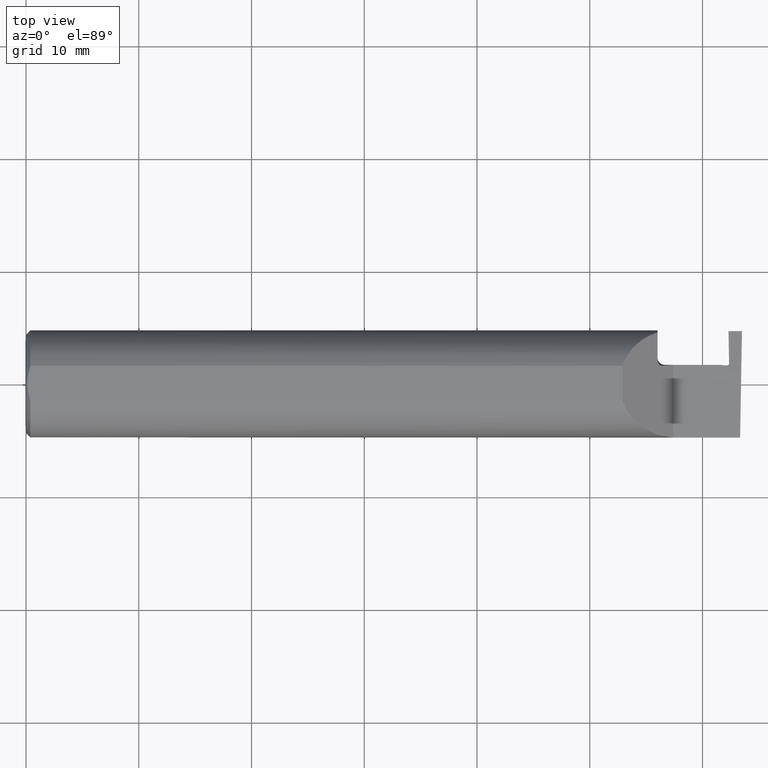
[diagram: clean part render]
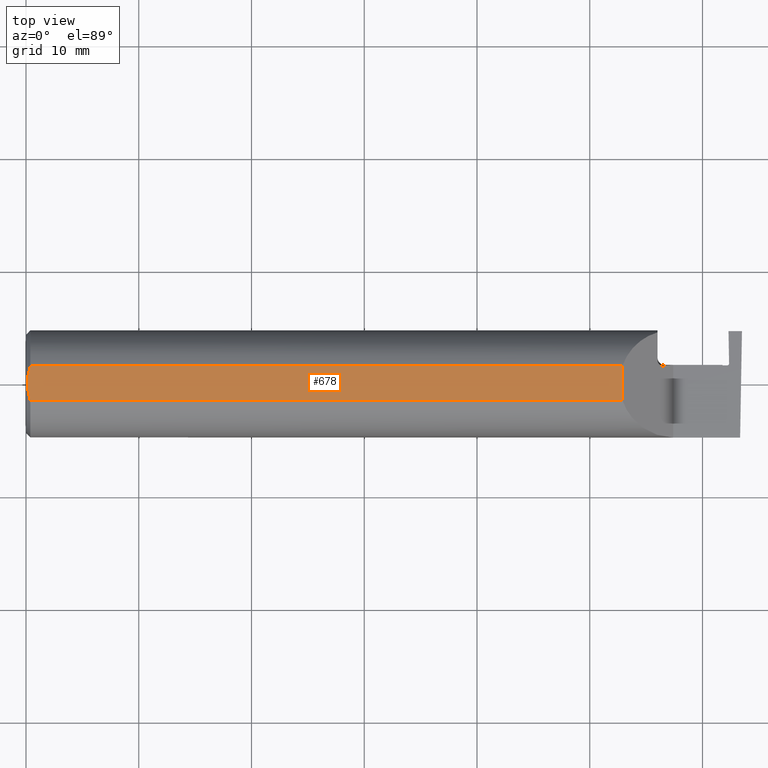
[diagram: same view with one face highlighted and labeled with its STEP entity id]
A machine part, top view. The second image highlights one B-rep face of the part: STEP entity #678.
In plain terms, the highlighted planar face has unit normal (0, -0, 1).
Its self-contained STEP definition (entity closure, byte-faithful):
#18 = CARTESIAN_POINT ( 'NONE',  ( 2.082650000000001445, -0.1873500000000000165, 0.1773499999999999799 ) ) ;
#32 = CARTESIAN_POINT ( 'NONE',  ( 0.000000000000000000, 0.06039039658753697637, 0.1773499999999999799 ) ) ;
#37 = CARTESIAN_POINT ( 'NONE',  ( 0.004999999999999835305, 2.941982542510190671E-17, 0.1773499999999999799 ) ) ;
#47 = DIRECTION ( 'NONE',  ( 0.000000000000000000, -0.000000000000000000, 1.000000000000000000 ) ) ;
#52 = CARTESIAN_POINT ( 'NONE',  ( 0.005916828623699125177, 0.02060071390057613763, 0.1773499999999999799 ) ) ;
#61 = ORIENTED_EDGE ( 'NONE', *, *, #620, .F. ) ;
#65 = ORIENTED_EDGE ( 'NONE', *, *, #880, .T. ) ;
#67 = EDGE_CURVE ( 'NONE', #94, #468, #516, .T. ) ;
#94 = VERTEX_POINT ( 'NONE', #37 ) ;
#98 = ORIENTED_EDGE ( 'NONE', *, *, #67, .T. ) ;
#101 = VECTOR ( 'NONE', #612, 39.37007874015748143 ) ;
#114 = CARTESIAN_POINT ( 'NONE',  ( 0.004999999999999835305, 2.941982542510190671E-17, 0.1773499999999999799 ) ) ;
#185 = DIRECTION ( 'NONE',  ( 1.000000000000000000, 0.000000000000000000, -0.000000000000000000 ) ) ;
#188 = LINE ( 'NONE', #328, #101 ) ;
#203 = ORIENTED_EDGE ( 'NONE', *, *, #316, .T. ) ;
#237 = CARTESIAN_POINT ( 'NONE',  ( 0.01499999999999756042, 0.06039039658754215278, 0.1773499999999999799 ) ) ;
#242 = LINE ( 'NONE', #18, #355 ) ;
#243 = CARTESIAN_POINT ( 'NONE',  ( 0.004999999999999833571, -0.01026662907944655458, 0.1773499999999999521 ) ) ;
#247 = CARTESIAN_POINT ( 'NONE',  ( 2.082650000000001445, -0.06039039658753699025, 0.1773499999999999799 ) ) ;
#256 = B_SPLINE_CURVE_WITH_KNOTS ( 'NONE', 3,
 ( #757, #345, #828, #52, #772, #114 ),
 .UNSPECIFIED., .F., .F.,
 ( 4, 2, 4 ),
 ( 0.004207325536406422359, 0.004979129323161655095, 0.005750933109916887831 ),
 .UNSPECIFIED. ) ;
#283 = EDGE_LOOP ( 'NONE', ( #61, #800, #203, #98, #65 ) ) ;
#316 = EDGE_CURVE ( 'NONE', #838, #94, #256, .T. ) ;
#328 = CARTESIAN_POINT ( 'NONE',  ( 0.000000000000000000, -0.06039039658753697637, 0.1773499999999999799 ) ) ;
#345 = CARTESIAN_POINT ( 'NONE',  ( 0.01185291896084217714, 0.05062716160312498437, 0.1773499999999999521 ) ) ;
#355 = VECTOR ( 'NONE', #532, 39.37007874015748143 ) ;
#377 = CARTESIAN_POINT ( 'NONE',  ( 0.009318557230853204490, -0.04061090184993776386, 0.1773499999999999799 ) ) ;
#385 = CARTESIAN_POINT ( 'NONE',  ( 0.01186375298701897348, -0.05066077215909271098, 0.1773499999999999799 ) ) ;
#388 = DIRECTION ( 'NONE',  ( -1.000000000000000000, -0.000000000000000000, -0.000000000000000000 ) ) ;
#398 = VECTOR ( 'NONE', #388, 39.37007874015748143 ) ;
#453 = LINE ( 'NONE', #32, #398 ) ;
#468 = VERTEX_POINT ( 'NONE', #563 ) ;
#511 = EDGE_CURVE ( 'NONE', #707, #838, #453, .T. ) ;
#516 = B_SPLINE_CURVE_WITH_KNOTS ( 'NONE', 3,
 ( #884, #243, #682, #377, #385, #533 ),
 .UNSPECIFIED., .F., .F.,
 ( 4, 2, 4 ),
 ( 0.005750933109916887831, 0.006521788775031543001, 0.007292644440146199038 ),
 .UNSPECIFIED. ) ;
#532 = DIRECTION ( 'NONE',  ( 0.000000000000000000, -1.000000000000000000, 0.000000000000000000 ) ) ;
#533 = CARTESIAN_POINT ( 'NONE',  ( 0.01499999999999999944, -0.06039039658753697637, 0.1773499999999999799 ) ) ;
#539 = PLANE ( 'NONE',  #699 ) ;
#554 = CARTESIAN_POINT ( 'NONE',  ( 2.500000000000000000, -0.1873500000000000165, 0.1773499999999999799 ) ) ;
#563 = CARTESIAN_POINT ( 'NONE',  ( 0.01499999999999999944, -0.06039039658753697637, 0.1773499999999999799 ) ) ;
#566 = VERTEX_POINT ( 'NONE', #247 ) ;
#612 = DIRECTION ( 'NONE',  ( 1.000000000000000000, 0.000000000000000000, 0.000000000000000000 ) ) ;
#620 = EDGE_CURVE ( 'NONE', #707, #566, #242, .T. ) ;
#678 = ADVANCED_FACE ( 'NONE', ( #691 ), #539, .T. ) ;
#682 = CARTESIAN_POINT ( 'NONE',  ( 0.005896899252109314912, -0.02043863390046160924, 0.1773500000000000354 ) ) ;
#691 = FACE_OUTER_BOUND ( 'NONE', #283, .T. ) ;
#699 = AXIS2_PLACEMENT_3D ( 'NONE', #554, #47, #185 ) ;
#700 = CARTESIAN_POINT ( 'NONE',  ( 2.082650000000001445, 0.06039039658753697637, 0.1773499999999999799 ) ) ;
#707 = VERTEX_POINT ( 'NONE', #700 ) ;
#757 = CARTESIAN_POINT ( 'NONE',  ( 0.01499999999999756042, 0.06039039658754215278, 0.1773499999999999799 ) ) ;
#772 = CARTESIAN_POINT ( 'NONE',  ( 0.004999999999999839642, 0.01027925662263861305, 0.1773499999999999799 ) ) ;
#800 = ORIENTED_EDGE ( 'NONE', *, *, #511, .T. ) ;
#828 = CARTESIAN_POINT ( 'NONE',  ( 0.009346310357820472939, 0.04072930668827419443, 0.1773500000000000354 ) ) ;
#838 = VERTEX_POINT ( 'NONE', #237 ) ;
#880 = EDGE_CURVE ( 'NONE', #468, #566, #188, .T. ) ;
#884 = CARTESIAN_POINT ( 'NONE',  ( 0.004999999999999835305, 2.941982542510190671E-17, 0.1773499999999999799 ) ) ;